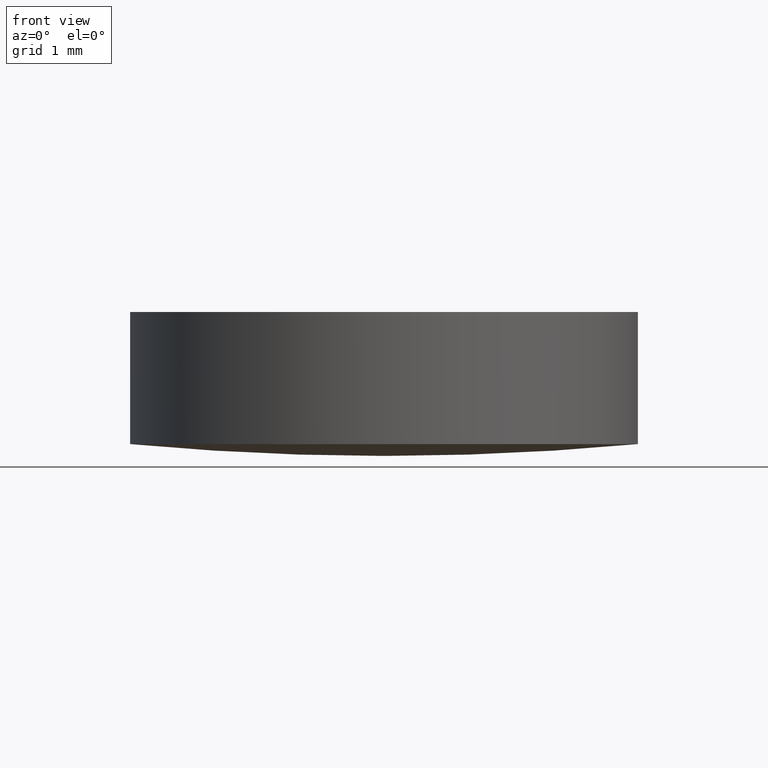
[diagram: clean part render]
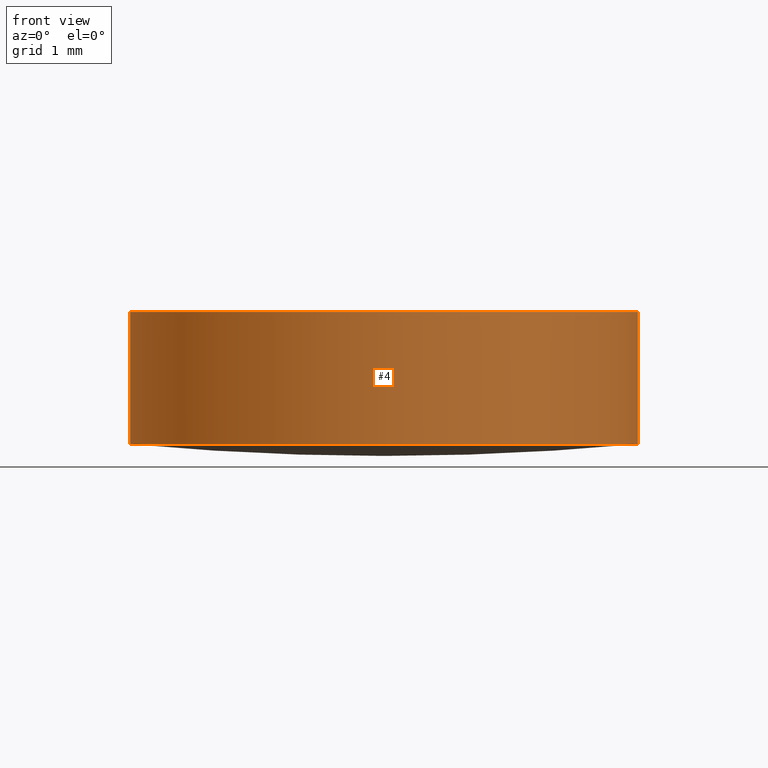
[diagram: same view with one face highlighted and labeled with its STEP entity id]
A machine part, front view. The second image highlights one B-rep face of the part: STEP entity #4.
In plain terms, the highlighted cylindrical surface (partial cylindrical patch) has radius 3 mm, axis along (-0, -0, -1).
Its self-contained STEP definition (entity closure, byte-faithful):
#4 = ADVANCED_FACE ( 'NONE', ( #134 ), #178, .T. ) ;
#7 = VERTEX_POINT ( 'NONE', #121 ) ;
#12 = ORIENTED_EDGE ( 'NONE', *, *, #81, .F. ) ;
#18 = CARTESIAN_POINT ( 'NONE',  ( -3.000000000000000000, 0.000000000000000000, 4.336808689942017736E-16 ) ) ;
#19 = EDGE_CURVE ( 'NONE', #196, #116, #84, .T. ) ;
#30 = VECTOR ( 'NONE', #86, 1000.000000000000000 ) ;
#34 = DIRECTION ( 'NONE',  ( -0.000000000000000000, -0.000000000000000000, -1.000000000000000000 ) ) ;
#37 = DIRECTION ( 'NONE',  ( -1.000000000000000000, 0.000000000000000000, 0.000000000000000000 ) ) ;
#39 = CARTESIAN_POINT ( 'NONE',  ( 0.000000000000000000, 0.000000000000000000, -1.699999999999999956 ) ) ;
#40 = AXIS2_PLACEMENT_3D ( 'NONE', #39, #106, #37 ) ;
#56 = CARTESIAN_POINT ( 'NONE',  ( 3.000000000000000000, 3.673940397442059868E-16, -1.699999999999999956 ) ) ;
#57 = EDGE_LOOP ( 'NONE', ( #12, #193, #122, #100 ) ) ;
#73 = CARTESIAN_POINT ( 'NONE',  ( 0.000000000000000000, 0.000000000000000000, 4.336808689942017736E-16 ) ) ;
#81 = EDGE_CURVE ( 'NONE', #196, #90, #148, .T. ) ;
#84 = CIRCLE ( 'NONE', #155, 3.000000000000000000 ) ;
#86 = DIRECTION ( 'NONE',  ( -0.000000000000000000, -0.000000000000000000, -1.000000000000000000 ) ) ;
#88 = EDGE_CURVE ( 'NONE', #90, #7, #142, .T. ) ;
#90 = VERTEX_POINT ( 'NONE', #176 ) ;
#91 = DIRECTION ( 'NONE',  ( -1.000000000000000000, 0.000000000000000000, 0.000000000000000000 ) ) ;
#100 = ORIENTED_EDGE ( 'NONE', *, *, #88, .F. ) ;
#101 = VECTOR ( 'NONE', #34, 1000.000000000000000 ) ;
#103 = DIRECTION ( 'NONE',  ( -0.000000000000000000, -0.000000000000000000, -1.000000000000000000 ) ) ;
#105 = EDGE_CURVE ( 'NONE', #116, #7, #146, .T. ) ;
#106 = DIRECTION ( 'NONE',  ( -0.000000000000000000, -0.000000000000000000, -1.000000000000000000 ) ) ;
#108 = DIRECTION ( 'NONE',  ( -0.000000000000000000, -0.000000000000000000, -1.000000000000000000 ) ) ;
#116 = VERTEX_POINT ( 'NONE', #18 ) ;
#121 = CARTESIAN_POINT ( 'NONE',  ( -2.999999999999999112, 0.000000000000000000, -1.559999999999997611 ) ) ;
#122 = ORIENTED_EDGE ( 'NONE', *, *, #105, .T. ) ;
#134 = FACE_OUTER_BOUND ( 'NONE', #57, .T. ) ;
#142 = CIRCLE ( 'NONE', #154, 3.000000000000000000 ) ;
#146 = LINE ( 'NONE', #161, #101 ) ;
#148 = LINE ( 'NONE', #56, #30 ) ;
#154 = AXIS2_PLACEMENT_3D ( 'NONE', #192, #103, #160 ) ;
#155 = AXIS2_PLACEMENT_3D ( 'NONE', #73, #108, #91 ) ;
#160 = DIRECTION ( 'NONE',  ( -1.000000000000000000, 0.000000000000000000, 0.000000000000000000 ) ) ;
#161 = CARTESIAN_POINT ( 'NONE',  ( -3.000000000000000000, 0.000000000000000000, -1.699999999999999956 ) ) ;
#176 = CARTESIAN_POINT ( 'NONE',  ( 2.999999999999999112, 3.673940397442059375E-16, -1.559999999999997611 ) ) ;
#178 = CYLINDRICAL_SURFACE ( 'NONE', #40, 3.000000000000000000 ) ;
#189 = CARTESIAN_POINT ( 'NONE',  ( 3.000000000000000000, 3.673940397442059868E-16, 4.336808689942017736E-16 ) ) ;
#192 = CARTESIAN_POINT ( 'NONE',  ( 0.000000000000000000, 0.000000000000000000, -1.559999999999999609 ) ) ;
#193 = ORIENTED_EDGE ( 'NONE', *, *, #19, .T. ) ;
#196 = VERTEX_POINT ( 'NONE', #189 ) ;